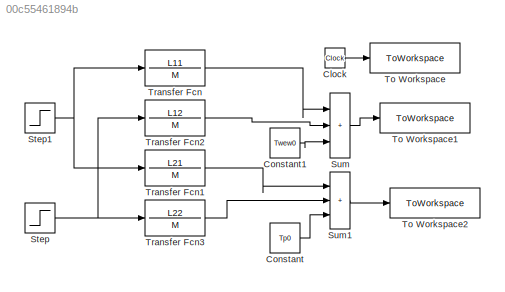
MODEL slx_00c55461894b
KIND model
CONFIG AbsTol = auto
CONFIG EnableMultiTasking = off
CONFIG FixedStep = auto
CONFIG MaxStep = auto
CONFIG MinStep = auto
CONFIG RelTol = 1e-3
CONFIG SampleTimeConstraint = Unconstrained
CONFIG SolverName = VariableStepAuto
CONFIG StartTime = 0.0
CONFIG StopTime = t_simulation
BLOCK [Clock] Clock
BLOCK [Constant] Constant
  Value = Tp0
BLOCK [Constant] Constant1
  Value = Twew0
BLOCK [Step] Step
  After = dTzew
  SampleTime = 0
  Time = t0
BLOCK [Step] Step1
  After = dgq
  SampleTime = 0
  Time = t0
BLOCK [Sum] Sum
  IconShape = rectangular
  Inputs = |+++
BLOCK [Sum] Sum1
  IconShape = rectangular
  Inputs = |+++
BLOCK [ToWorkspace] To Workspace
  FixptAsFi = on
  MaxDataPoints = inf
  SampleTime = -1
  VariableName = t
BLOCK [ToWorkspace] To Workspace1
  FixptAsFi = on
  MaxDataPoints = inf
  SampleTime = -1
  VariableName = Twew
BLOCK [ToWorkspace] To Workspace2
  FixptAsFi = on
  MaxDataPoints = inf
  SampleTime = -1
  VariableName = Tp
BLOCK [TransferFcn] Transfer Fcn
  Denominator = M
  Numerator = L11
BLOCK [TransferFcn] Transfer Fcn1
  Denominator = M
  Numerator = L21
BLOCK [TransferFcn] Transfer Fcn2
  Denominator = M
  Numerator = L12
BLOCK [TransferFcn] Transfer Fcn3
  Denominator = M
  Numerator = L22
LINE Clock:1 -> To Workspace:1
LINE Constant1:1 -> Sum:3
LINE Constant:1 -> Sum1:3
NET Step1:1 -> Transfer Fcn1:1, Transfer Fcn:1
NET Step:1 -> Transfer Fcn2:1, Transfer Fcn3:1
LINE Sum1:1 -> To Workspace2:1
LINE Sum:1 -> To Workspace1:1
LINE Transfer Fcn1:1 -> Sum1:1
LINE Transfer Fcn2:1 -> Sum:2
LINE Transfer Fcn3:1 -> Sum1:2
LINE Transfer Fcn:1 -> Sum:1
note: NET lines group one-source signal fan-out (src -> all destinations, sorted); 1:1 wires keep LINE
